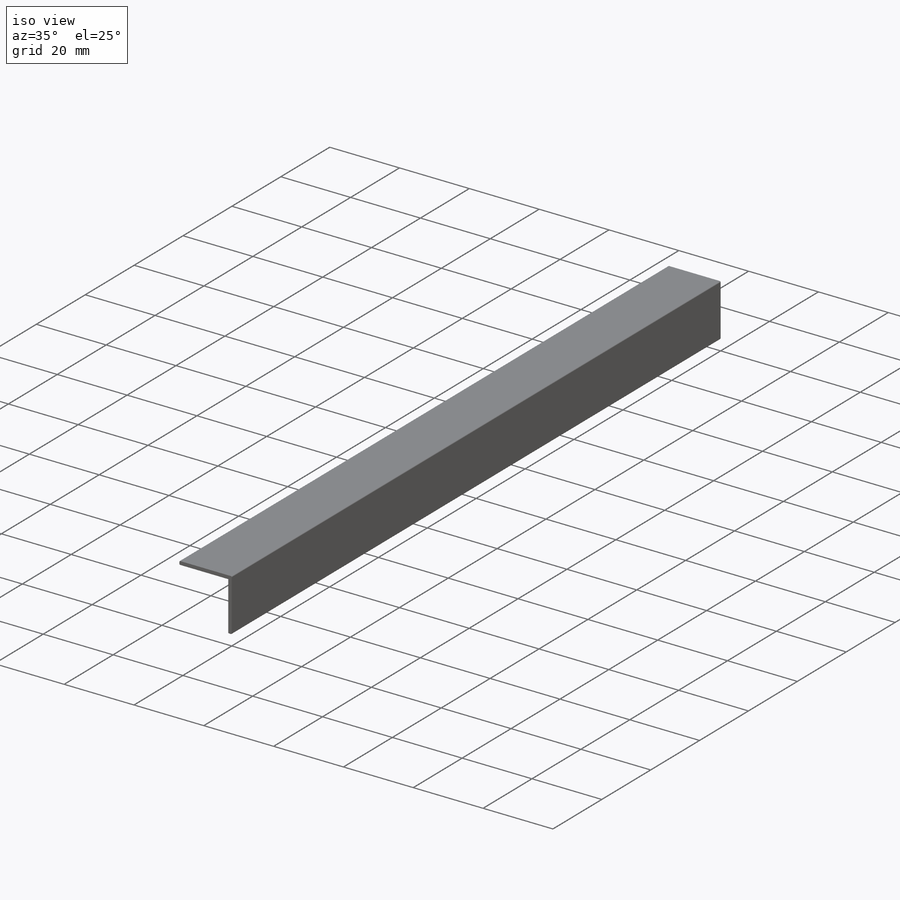
[diagram: iso view]
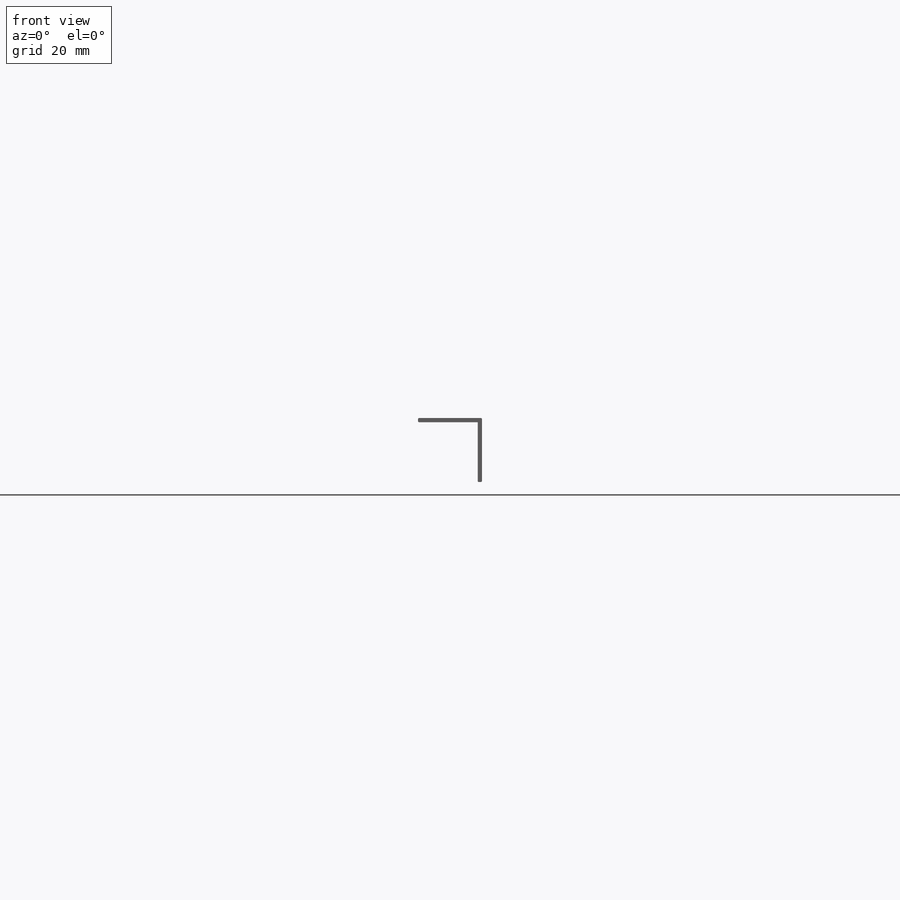
[diagram: front view]
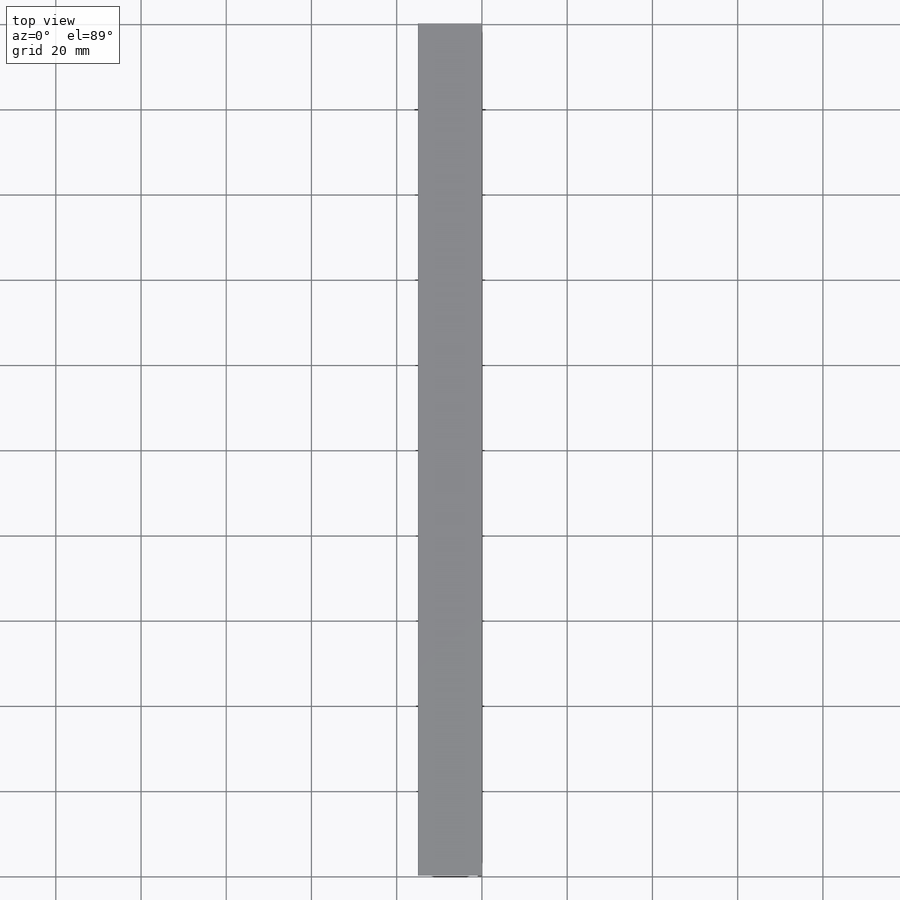
[diagram: top view]
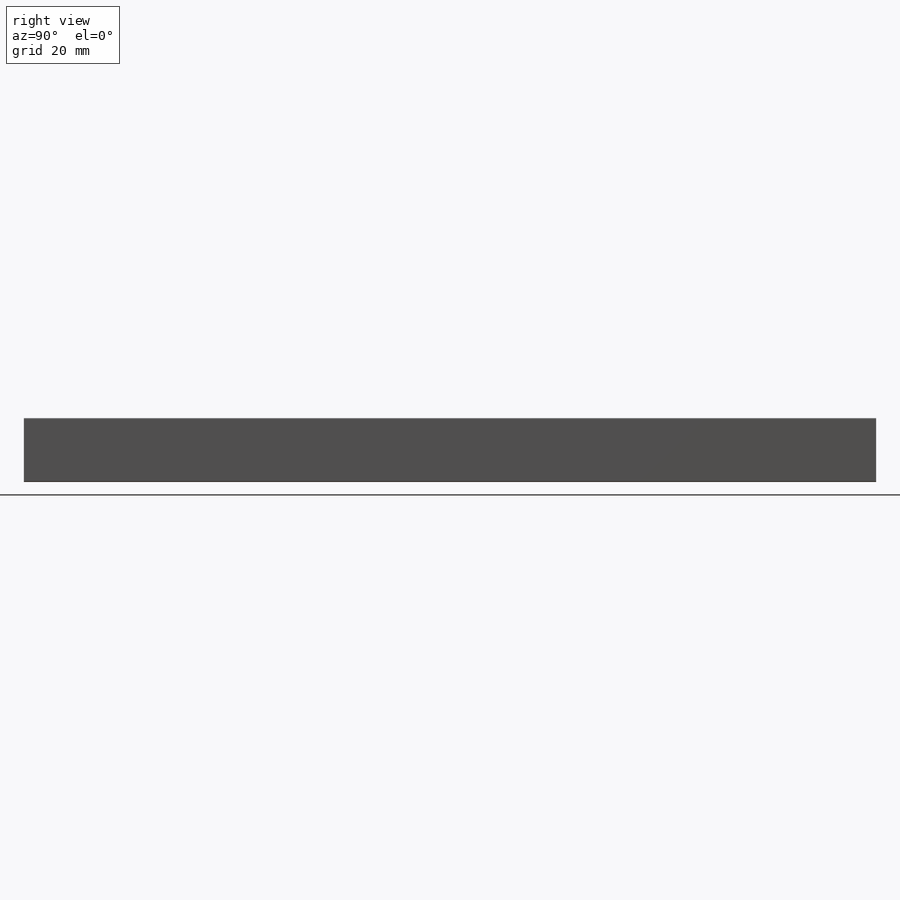
[diagram: right view]
SOLIDWORKS PART (.sldprt)
format: sldprt  version: not decoded by parser v0  size: 367,616 bytes
history: native  units: mm
features: sketch x7, hole x2, pattern_linear x2, material x1, extrude x1, fillet x1 (+13 scaffold rows collapsed)
feature tree (27):
  scaffold x13  (default folders/planes/origin — collapsed)
  material  "Material <not specified>"
  sketch  "Sketch1"  dims[D1=14.0mm]
  extrude  "Extrude1"  Depth=200mm
  fillet  "Fillet1"  Radius=0.25mm
  sketch  "Sketch2"
  hole  "CSK for M3 Countersunk Flat Head Screw1"  Diameter=3.4mm Depth=1.001mm
  sketch  "3DSketch1"
  sketch  "Sketch3"  dims[hole-wizard template sketch: 55 standard entries collapsed; hole parameters kept: c17.Thru Hole Depth=1.001mm c17.Near C'Sink Dia.=6.3mm c17.D4=~3.666174mm c17.Near C'Sink Angle=90.0deg]
  pattern_linear  "LPattern1"  Count1=6 Count2=1 Spacing1=38.4mm Spacing2=50mm
  sketch  "Sketch4"
  hole  "CSK for M3 Countersunk Flat Head Screw2"  Diameter=3.4mm Depth=1.001mm
  sketch  "3DSketch2"
  sketch  "Sketch5"  dims[hole-wizard template sketch: 55 standard entries collapsed; hole parameters kept: c17.Thru Hole Depth=1.001mm c17.Near C'Sink Dia.=6.3mm c17.D4=~3.666174mm c17.Near C'Sink Angle=90.0deg]
  pattern_linear  "LPattern2"  Count1=6 Count2=1 Spacing1=38.4mm Spacing2=50mm
decode coverage: 9 of 13 modeling features carry decoded parameters
note: ~ marks probable driven/reference dimensions
note: suppression state not decoded; provenance and decode notes live in map.json
